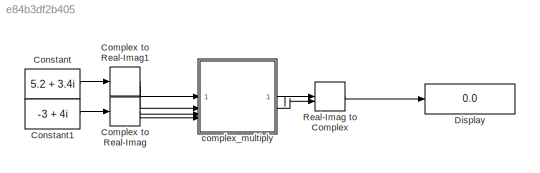
MODEL slx_e84b3df2b405
KIND model
CONFIG AbsTol = auto
CONFIG EnableMultiTasking = off
CONFIG FixedStep = auto
CONFIG MaxStep = auto
CONFIG MinStep = auto
CONFIG RelTol = 1e-3
CONFIG SampleTimeConstraint = Unconstrained
CONFIG SolverName = FixedStepDiscrete
CONFIG StartTime = 0.0
CONFIG StopTime = 10.0
BLOCK [ComplexToRealImag] Complex to Real-Imag
BLOCK [ComplexToRealImag] Complex to Real-Imag1
BLOCK [Constant] Constant
  OutDataTypeStr = fixdt(1,16,8)
  SampleTime = -1
  Value = 5.2 + 3.4i
BLOCK [Constant] Constant1
  OutDataTypeStr = fixdt(1,16,8)
  SampleTime = -1
  Value = -3 + 4i
BLOCK [Display] Display
  Decimation = 1
BLOCK [RealImagToComplex] Real-Imag to Complex
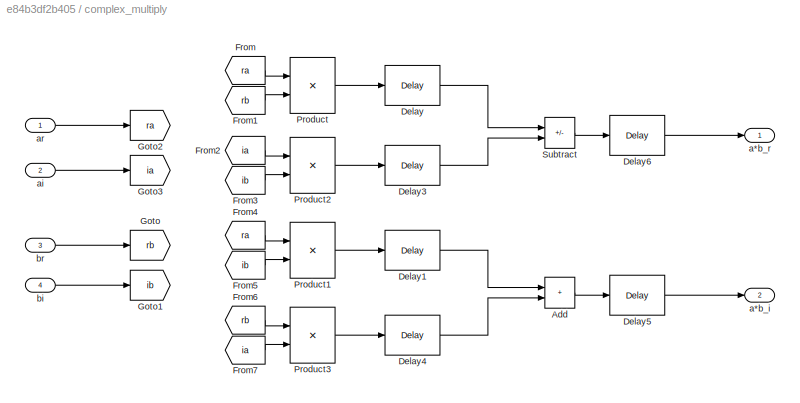
BLOCK [SubSystem] complex_multiply
  TreatAsAtomicUnit = on
BLOCK [Sum] complex_multiply/Add
  IconShape = rectangular
BLOCK [Delay] complex_multiply/Delay
  DelayLength = 1
  InitialCondition = 0
  InputPortMap = u0
  UseCircularBuffer = on
  UserDataPersistent = on
BLOCK [Delay] complex_multiply/Delay1
  DelayLength = 1
  InitialCondition = 0
  InputPortMap = u0
  UseCircularBuffer = on
  UserDataPersistent = on
BLOCK [Delay] complex_multiply/Delay3
  DelayLength = 1
  InitialCondition = 0
  InputPortMap = u0
  UseCircularBuffer = on
  UserDataPersistent = on
BLOCK [Delay] complex_multiply/Delay4
  DelayLength = 1
  InitialCondition = 0
  InputPortMap = u0
  UseCircularBuffer = on
  UserDataPersistent = on
BLOCK [Delay] complex_multiply/Delay5
  DelayLength = 1
  InitialCondition = 0
  InputPortMap = u0
  UseCircularBuffer = on
  UserDataPersistent = on
BLOCK [Delay] complex_multiply/Delay6
  DelayLength = 1
  InitialCondition = 0
  InputPortMap = u0
  UseCircularBuffer = on
  UserDataPersistent = on
BLOCK [From] complex_multiply/From
  GotoTag = ra
BLOCK [From] complex_multiply/From1
  GotoTag = rb
BLOCK [From] complex_multiply/From2
  GotoTag = ia
BLOCK [From] complex_multiply/From3
  GotoTag = ib
BLOCK [From] complex_multiply/From4
  GotoTag = ra
BLOCK [From] complex_multiply/From5
  GotoTag = ib
BLOCK [From] complex_multiply/From6
  GotoTag = rb
BLOCK [From] complex_multiply/From7
  GotoTag = ia
BLOCK [Goto] complex_multiply/Goto
  GotoTag = rb
BLOCK [Goto] complex_multiply/Goto1
  GotoTag = ib
BLOCK [Goto] complex_multiply/Goto2
  GotoTag = ra
BLOCK [Goto] complex_multiply/Goto3
  GotoTag = ia
BLOCK [Product] complex_multiply/Product
BLOCK [Product] complex_multiply/Product1
BLOCK [Product] complex_multiply/Product2
BLOCK [Product] complex_multiply/Product3
BLOCK [Sum] complex_multiply/Subtract
  IconShape = rectangular
  Inputs = +-
BLOCK [Outport] complex_multiply/a*b_i
  Port = 2
BLOCK [Outport] complex_multiply/a*b_r
BLOCK [Inport] complex_multiply/ai
  Port = 2
BLOCK [Inport] complex_multiply/ar
BLOCK [Inport] complex_multiply/bi
  Port = 4
BLOCK [Inport] complex_multiply/br
  Port = 3
LINE Complex to Real-Imag1:1 -> complex_multiply:1
LINE Complex to Real-Imag1:2 -> complex_multiply:2
LINE Complex to Real-Imag:1 -> complex_multiply:3
LINE Complex to Real-Imag:2 -> complex_multiply:4
LINE Constant1:1 -> Complex to Real-Imag:1
LINE Constant:1 -> Complex to Real-Imag1:1
LINE Real-Imag to Complex:1 -> Display:1
LINE complex_multiply/Add:1 -> complex_multiply/Delay5:1
LINE complex_multiply/Delay1:1 -> complex_multiply/Add:1
LINE complex_multiply/Delay3:1 -> complex_multiply/Subtract:2
LINE complex_multiply/Delay4:1 -> complex_multiply/Add:2
LINE complex_multiply/Delay5:1 -> complex_multiply/a*b_i:1
LINE complex_multiply/Delay6:1 -> complex_multiply/a*b_r:1
LINE complex_multiply/Delay:1 -> complex_multiply/Subtract:1
LINE complex_multiply/From1:1 -> complex_multiply/Product:2
LINE complex_multiply/From2:1 -> complex_multiply/Product2:1
LINE complex_multiply/From3:1 -> complex_multiply/Product2:2
LINE complex_multiply/From4:1 -> complex_multiply/Product1:1
LINE complex_multiply/From5:1 -> complex_multiply/Product1:2
LINE complex_multiply/From6:1 -> complex_multiply/Product3:1
LINE complex_multiply/From7:1 -> complex_multiply/Product3:2
LINE complex_multiply/From:1 -> complex_multiply/Product:1
LINE complex_multiply/Product1:1 -> complex_multiply/Delay1:1
LINE complex_multiply/Product2:1 -> complex_multiply/Delay3:1
LINE complex_multiply/Product3:1 -> complex_multiply/Delay4:1
LINE complex_multiply/Product:1 -> complex_multiply/Delay:1
LINE complex_multiply/Subtract:1 -> complex_multiply/Delay6:1
LINE complex_multiply/ai:1 -> complex_multiply/Goto3:1
LINE complex_multiply/ar:1 -> complex_multiply/Goto2:1
LINE complex_multiply/bi:1 -> complex_multiply/Goto1:1
LINE complex_multiply/br:1 -> complex_multiply/Goto:1
LINE complex_multiply:1 -> Real-Imag to Complex:1
LINE complex_multiply:2 -> Real-Imag to Complex:2
